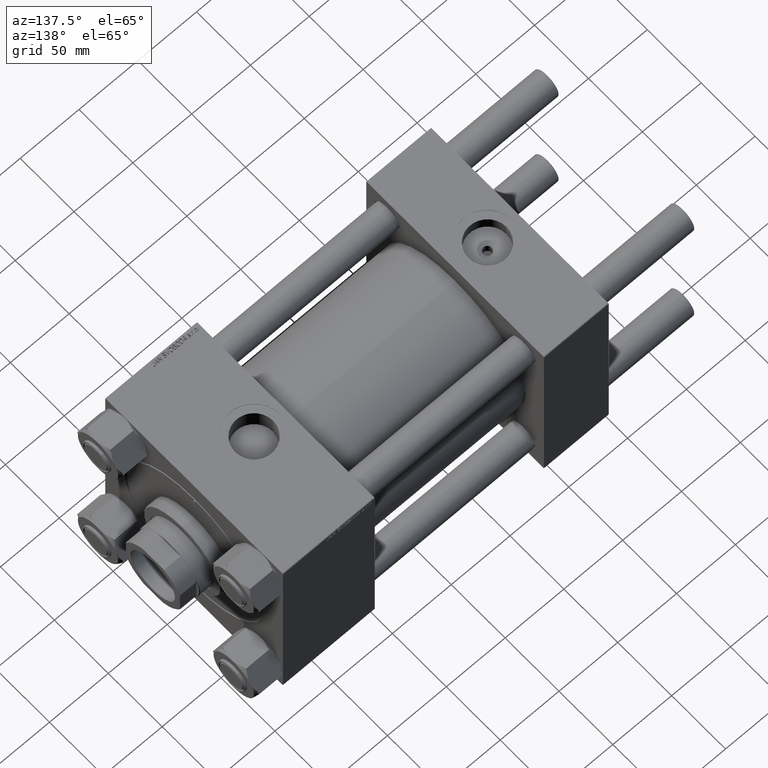
[diagram: clean part render]
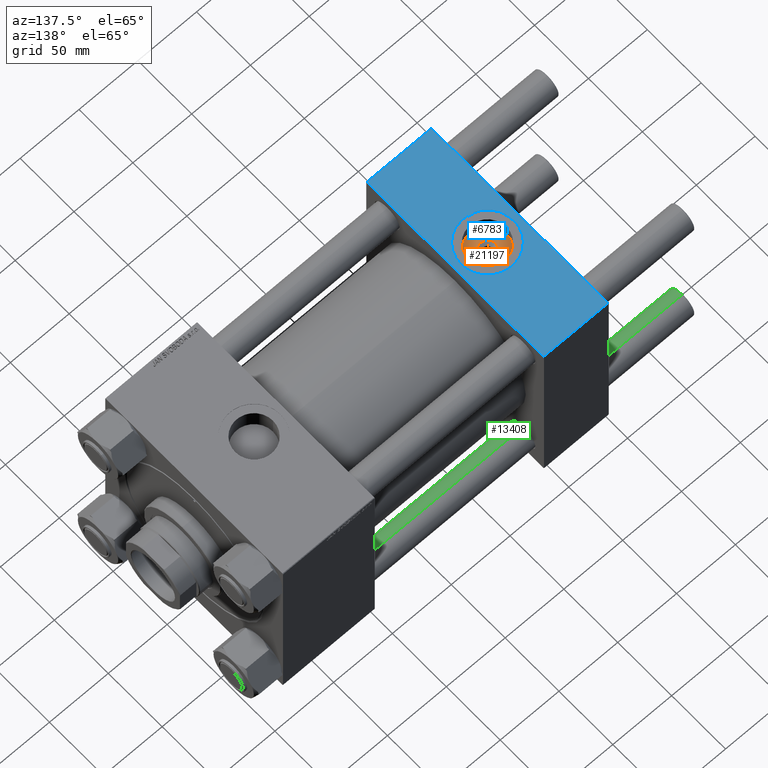
[diagram: same view with three faces highlighted in distinct colors, each labeled with its STEP entity id]
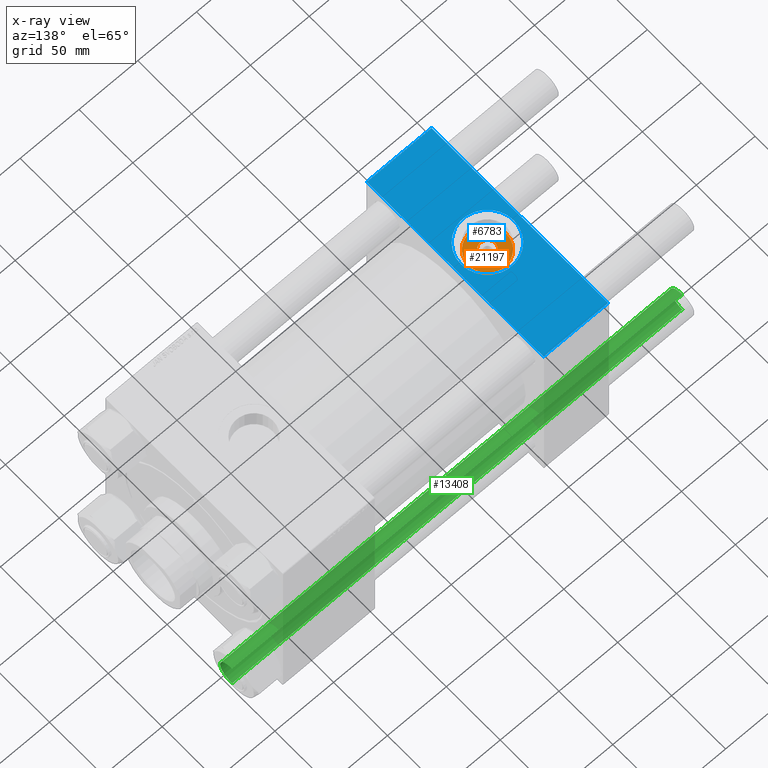
[diagram: x-ray of the same camera — body ghosted, the three highlighted faces saturated]
A machine part, auxiliary view with three faces highlighted in distinct colors.
The next image is the same camera in x-ray (body ghosted, the three faces saturated) — at least one of them is partly hidden behind the body in this view.
Their STEP definitions:

[orange] entity #21197 — the highlighted planar face has unit normal (0, 0, 1).
#1926 = EDGE_CURVE ( 'NONE', #11041, #44816, #34097, .T. ) ;
#3099 = FACE_BOUND ( 'NONE', #12371, .T. ) ;
#3137 = DIRECTION ( 'NONE',  ( 1.000000000000000000, 0.000000000000000000, 0.000000000000000000 ) ) ;
#3382 = CARTESIAN_POINT ( 'NONE',  ( 27.50000000000000000, -8.673617379884037050E-15, 71.70000000000001705 ) ) ;
#3487 = VERTEX_POINT ( 'NONE', #21592 ) ;
#3653 = CARTESIAN_POINT ( 'NONE',  ( 27.50000000000000000, -8.673617379884037050E-15, 71.70000000000001705 ) ) ;
#6451 = DIRECTION ( 'NONE',  ( 0.000000000000000000, 0.000000000000000000, 1.000000000000000000 ) ) ;
#7441 = DIRECTION ( 'NONE',  ( 1.000000000000000000, 0.000000000000000000, -0.000000000000000000 ) ) ;
#8031 = AXIS2_PLACEMENT_3D ( 'NONE', #17435, #14379, #37074 ) ;
#11041 = VERTEX_POINT ( 'NONE', #43092 ) ;
#12371 = EDGE_LOOP ( 'NONE', ( #15055, #31788 ) ) ;
#12452 = EDGE_CURVE ( 'NONE', #21450, #3487, #42854, .T. ) ;
#14379 = DIRECTION ( 'NONE',  ( 0.000000000000000000, 0.000000000000000000, 1.000000000000000000 ) ) ;
#14706 = EDGE_LOOP ( 'NONE', ( #23000, #47223 ) ) ;
#15055 = ORIENTED_EDGE ( 'NONE', *, *, #12452, .T. ) ;
#17435 = CARTESIAN_POINT ( 'NONE',  ( 27.50000000000000000, -8.673617379884037050E-15, 71.70000000000001705 ) ) ;
#17896 = AXIS2_PLACEMENT_3D ( 'NONE', #29792, #21379, #36697 ) ;
#18642 = CARTESIAN_POINT ( 'NONE',  ( 27.50000000000000000, -8.673617379884037050E-15, 71.70000000000001705 ) ) ;
#20802 = AXIS2_PLACEMENT_3D ( 'NONE', #3382, #25804, #45227 ) ;
#21197 = ADVANCED_FACE ( 'NONE', ( #3099, #31148 ), #42382, .T. ) ;
#21379 = DIRECTION ( 'NONE',  ( -0.000000000000000000, -0.000000000000000000, -1.000000000000000000 ) ) ;
#21450 = VERTEX_POINT ( 'NONE', #35155 ) ;
#21592 = CARTESIAN_POINT ( 'NONE',  ( 20.85999999999996390, -7.860451905250190996E-15, 71.70000000000001705 ) ) ;
#23000 = ORIENTED_EDGE ( 'NONE', *, *, #43395, .T. ) ;
#25804 = DIRECTION ( 'NONE',  ( -0.000000000000000000, -0.000000000000000000, -1.000000000000000000 ) ) ;
#26086 = AXIS2_PLACEMENT_3D ( 'NONE', #18642, #27303, #7441 ) ;
#26175 = CARTESIAN_POINT ( 'NONE',  ( 43.62000000000000455, -8.673617379884037050E-15, 71.70000000000001705 ) ) ;
#27303 = DIRECTION ( 'NONE',  ( 0.000000000000000000, 0.000000000000000000, 1.000000000000000000 ) ) ;
#29792 = CARTESIAN_POINT ( 'NONE',  ( 27.50000000000000000, -8.673617379884037050E-15, 71.70000000000001705 ) ) ;
#31148 = FACE_OUTER_BOUND ( 'NONE', #14706, .T. ) ;
#31788 = ORIENTED_EDGE ( 'NONE', *, *, #48134, .T. ) ;
#34097 = CIRCLE ( 'NONE', #8031, 16.12000000000000455 ) ;
#35155 = CARTESIAN_POINT ( 'NONE',  ( 34.14000000000002899, -8.673617379884037050E-15, 71.70000000000001705 ) ) ;
#36697 = DIRECTION ( 'NONE',  ( 1.000000000000000000, 0.000000000000000000, 0.000000000000000000 ) ) ;
#37074 = DIRECTION ( 'NONE',  ( 1.000000000000000000, 0.000000000000000000, 0.000000000000000000 ) ) ;
#39900 = CIRCLE ( 'NONE', #17896, 6.640000000000031655 ) ;
#42382 = PLANE ( 'NONE',  #26086 ) ;
#42854 = CIRCLE ( 'NONE', #20802, 6.640000000000031655 ) ;
#43092 = CARTESIAN_POINT ( 'NONE',  ( 11.37999999999999012, -6.699486739658503022E-15, 71.70000000000001705 ) ) ;
#43395 = EDGE_CURVE ( 'NONE', #44816, #11041, #50464, .T. ) ;
#44816 = VERTEX_POINT ( 'NONE', #26175 ) ;
#45227 = DIRECTION ( 'NONE',  ( 1.000000000000000000, 0.000000000000000000, 0.000000000000000000 ) ) ;
#47220 = AXIS2_PLACEMENT_3D ( 'NONE', #3653, #6451, #3137 ) ;
#47223 = ORIENTED_EDGE ( 'NONE', *, *, #1926, .T. ) ;
#48134 = EDGE_CURVE ( 'NONE', #3487, #21450, #39900, .T. ) ;
#50464 = CIRCLE ( 'NONE', #47220, 16.12000000000000455 ) ;

[blue] entity #6783 — the highlighted planar face has unit normal (0, 0, -1).
#144 = EDGE_CURVE ( 'NONE', #1160, #29355, #17335, .T. ) ;
#1160 = VERTEX_POINT ( 'NONE', #25810 ) ;
#1711 = EDGE_CURVE ( 'NONE', #24783, #1160, #4691, .T. ) ;
#1891 = FACE_OUTER_BOUND ( 'NONE', #25437, .T. ) ;
#2204 = EDGE_CURVE ( 'NONE', #40864, #13373, #24360, .T. ) ;
#4002 = VECTOR ( 'NONE', #33420, 1000.000000000000000 ) ;
#4581 = CARTESIAN_POINT ( 'NONE',  ( 0.000000000000000000, -81.99999999999997158, 82.50000000000001421 ) ) ;
#4691 = LINE ( 'NONE', #35563, #30856 ) ;
#6783 = ADVANCED_FACE ( 'NONE', ( #36837, #1891 ), #48326, .F. ) ;
#9028 = DIRECTION ( 'NONE',  ( -1.000000000000000000, 0.000000000000000000, 0.000000000000000000 ) ) ;
#10020 = DIRECTION ( 'NONE',  ( 0.000000000000000000, 0.000000000000000000, 1.000000000000000000 ) ) ;
#10617 = EDGE_CURVE ( 'NONE', #13373, #40864, #17310, .T. ) ;
#10934 = CARTESIAN_POINT ( 'NONE',  ( 55.00000000000000000, -81.99999999999997158, 82.50000000000001421 ) ) ;
#13373 = VERTEX_POINT ( 'NONE', #46499 ) ;
#13375 = CARTESIAN_POINT ( 'NONE',  ( 55.00000000000000000, 82.50000000000002842, 82.50000000000002842 ) ) ;
#16681 = CARTESIAN_POINT ( 'NONE',  ( 55.00000000000000000, 82.50000000000002842, 82.50000000000002842 ) ) ;
#17080 = CARTESIAN_POINT ( 'NONE',  ( 0.000000000000000000, 82.50000000000002842, 82.50000000000002842 ) ) ;
#17199 = DIRECTION ( 'NONE',  ( 0.000000000000000000, 1.000000000000000000, 8.410780489584519171E-17 ) ) ;
#17310 = CIRCLE ( 'NONE', #41752, 22.50000000000000355 ) ;
#17335 = LINE ( 'NONE', #17080, #35695 ) ;
#17427 = DIRECTION ( 'NONE',  ( 0.000000000000000000, -1.000000000000000000, -8.410780489584519171E-17 ) ) ;
#17449 = DIRECTION ( 'NONE',  ( 0.000000000000000000, 8.410780489584519171E-17, -1.000000000000000000 ) ) ;
#17865 = CARTESIAN_POINT ( 'NONE',  ( 27.50000000000000000, -8.673617379884037050E-15, 82.50000000000001421 ) ) ;
#18126 = DIRECTION ( 'NONE',  ( 1.000000000000000000, 0.000000000000000000, 0.000000000000000000 ) ) ;
#18337 = ORIENTED_EDGE ( 'NONE', *, *, #35034, .F. ) ;
#18725 = CARTESIAN_POINT ( 'NONE',  ( 55.00000000000000000, 82.00000000000005684, 82.50000000000002842 ) ) ;
#21522 = ORIENTED_EDGE ( 'NONE', *, *, #42751, .T. ) ;
#24360 = CIRCLE ( 'NONE', #49622, 22.50000000000000355 ) ;
#24783 = VERTEX_POINT ( 'NONE', #18725 ) ;
#25437 = EDGE_LOOP ( 'NONE', ( #45350, #21522, #18337, #40428 ) ) ;
#25808 = DIRECTION ( 'NONE',  ( 1.000000000000000000, 0.000000000000000000, 0.000000000000000000 ) ) ;
#25810 = CARTESIAN_POINT ( 'NONE',  ( 0.000000000000000000, 82.00000000000005684, 82.50000000000002842 ) ) ;
#28897 = LINE ( 'NONE', #16681, #45997 ) ;
#29355 = VERTEX_POINT ( 'NONE', #4581 ) ;
#30856 = VECTOR ( 'NONE', #9028, 1000.000000000000000 ) ;
#33420 = DIRECTION ( 'NONE',  ( 1.000000000000000000, 0.000000000000000000, 0.000000000000000000 ) ) ;
#34440 = LINE ( 'NONE', #45671, #4002 ) ;
#35011 = CARTESIAN_POINT ( 'NONE',  ( 50.00000000000000000, -8.673617379884037050E-15, 82.50000000000001421 ) ) ;
#35034 = EDGE_CURVE ( 'NONE', #24783, #41484, #28897, .T. ) ;
#35563 = CARTESIAN_POINT ( 'NONE',  ( 0.000000000000000000, 82.00000000000005684, 82.50000000000002842 ) ) ;
#35695 = VECTOR ( 'NONE', #40799, 1000.000000000000000 ) ;
#36837 = FACE_BOUND ( 'NONE', #46449, .T. ) ;
#40428 = ORIENTED_EDGE ( 'NONE', *, *, #1711, .T. ) ;
#40799 = DIRECTION ( 'NONE',  ( 0.000000000000000000, -1.000000000000000000, -8.410780489584519171E-17 ) ) ;
#40864 = VERTEX_POINT ( 'NONE', #35011 ) ;
#41484 = VERTEX_POINT ( 'NONE', #10934 ) ;
#41752 = AXIS2_PLACEMENT_3D ( 'NONE', #44982, #10020, #25808 ) ;
#42751 = EDGE_CURVE ( 'NONE', #29355, #41484, #34440, .T. ) ;
#43740 = ORIENTED_EDGE ( 'NONE', *, *, #10617, .F. ) ;
#44077 = AXIS2_PLACEMENT_3D ( 'NONE', #13375, #17449, #17199 ) ;
#44413 = DIRECTION ( 'NONE',  ( 0.000000000000000000, 0.000000000000000000, 1.000000000000000000 ) ) ;
#44982 = CARTESIAN_POINT ( 'NONE',  ( 27.50000000000000000, -8.673617379884037050E-15, 82.50000000000001421 ) ) ;
#45350 = ORIENTED_EDGE ( 'NONE', *, *, #144, .T. ) ;
#45671 = CARTESIAN_POINT ( 'NONE',  ( 55.00000000000000000, -81.99999999999997158, 82.50000000000001421 ) ) ;
#45997 = VECTOR ( 'NONE', #17427, 1000.000000000000000 ) ;
#46449 = EDGE_LOOP ( 'NONE', ( #50416, #43740 ) ) ;
#46499 = CARTESIAN_POINT ( 'NONE',  ( 4.999999999999993783, -5.918162081802491483E-15, 82.50000000000001421 ) ) ;
#48326 = PLANE ( 'NONE',  #44077 ) ;
#49622 = AXIS2_PLACEMENT_3D ( 'NONE', #17865, #44413, #18126 ) ;
#50416 = ORIENTED_EDGE ( 'NONE', *, *, #2204, .F. ) ;

[green] entity #13408 — the highlighted cylindrical surface (edge-blend (fillet) strip) has radius 11 mm, axis along (1, 0, -0).
#1044 = DIRECTION ( 'NONE',  ( -0.000000000000000000, -0.000000000000000000, -1.000000000000000000 ) ) ;
#1135 = CARTESIAN_POINT ( 'NONE',  ( 0.000000000000000000, 0.000000000000000000, 383.5000000000000568 ) ) ;
#2799 = EDGE_CURVE ( 'NONE', #48516, #18837, #21067, .T. ) ;
#5152 = EDGE_CURVE ( 'NONE', #18837, #7452, #16349, .T. ) ;
#5451 = DIRECTION ( 'NONE',  ( 1.000000000000000000, 0.000000000000000000, 0.000000000000000000 ) ) ;
#5860 = ORIENTED_EDGE ( 'NONE', *, *, #31666, .T. ) ;
#6027 = CARTESIAN_POINT ( 'NONE',  ( -11.00000000000000000, 0.000000000000000000, 0.4999999999999449329 ) ) ;
#6068 = CIRCLE ( 'NONE', #34600, 11.00000000000000000 ) ;
#7301 = CARTESIAN_POINT ( 'NONE',  ( -11.00000000000000000, 0.000000000000000000, 383.5000000000000568 ) ) ;
#7452 = VERTEX_POINT ( 'NONE', #6027 ) ;
#12536 = CYLINDRICAL_SURFACE ( 'NONE', #46332, 11.00000000000000000 ) ;
#13408 = ADVANCED_FACE ( 'NONE', ( #39580 ), #12536, .T. ) ;
#16349 = LINE ( 'NONE', #28064, #41563 ) ;
#18837 = VERTEX_POINT ( 'NONE', #7301 ) ;
#21067 = CIRCLE ( 'NONE', #34131, 11.00000000000000000 ) ;
#25389 = CARTESIAN_POINT ( 'NONE',  ( 11.00000000000000000, 1.347111479062088405E-15, 383.5000000000000568 ) ) ;
#27335 = DIRECTION ( 'NONE',  ( -1.000000000000000000, 0.000000000000000000, 0.000000000000000000 ) ) ;
#28064 = CARTESIAN_POINT ( 'NONE',  ( -11.00000000000000000, 0.000000000000000000, 384.0000000000000000 ) ) ;
#28397 = DIRECTION ( 'NONE',  ( 0.000000000000000000, 0.000000000000000000, -1.000000000000000000 ) ) ;
#28610 = DIRECTION ( 'NONE',  ( 1.000000000000000000, 0.000000000000000000, 0.000000000000000000 ) ) ;
#29799 = VECTOR ( 'NONE', #44451, 1000.000000000000000 ) ;
#31419 = CARTESIAN_POINT ( 'NONE',  ( 0.000000000000000000, 0.000000000000000000, 384.0000000000000000 ) ) ;
#31666 = EDGE_CURVE ( 'NONE', #7452, #44017, #6068, .T. ) ;
#31913 = DIRECTION ( 'NONE',  ( -0.000000000000000000, -0.000000000000000000, -1.000000000000000000 ) ) ;
#34131 = AXIS2_PLACEMENT_3D ( 'NONE', #1135, #28397, #5451 ) ;
#34295 = ORIENTED_EDGE ( 'NONE', *, *, #5152, .T. ) ;
#34600 = AXIS2_PLACEMENT_3D ( 'NONE', #44192, #47771, #28610 ) ;
#35289 = LINE ( 'NONE', #37044, #29799 ) ;
#36885 = CARTESIAN_POINT ( 'NONE',  ( 11.00000000000000000, 1.347111479062088405E-15, 0.4999999999999449329 ) ) ;
#37044 = CARTESIAN_POINT ( 'NONE',  ( 11.00000000000000000, 1.347111479062088405E-15, 384.0000000000000000 ) ) ;
#38516 = EDGE_CURVE ( 'NONE', #48516, #44017, #35289, .T. ) ;
#38800 = EDGE_LOOP ( 'NONE', ( #46808, #42879, #34295, #5860 ) ) ;
#39580 = FACE_OUTER_BOUND ( 'NONE', #38800, .T. ) ;
#41563 = VECTOR ( 'NONE', #1044, 1000.000000000000000 ) ;
#42879 = ORIENTED_EDGE ( 'NONE', *, *, #2799, .T. ) ;
#44017 = VERTEX_POINT ( 'NONE', #36885 ) ;
#44192 = CARTESIAN_POINT ( 'NONE',  ( 0.000000000000000000, 0.000000000000000000, 0.4999999999999449329 ) ) ;
#44451 = DIRECTION ( 'NONE',  ( -0.000000000000000000, -0.000000000000000000, -1.000000000000000000 ) ) ;
#46332 = AXIS2_PLACEMENT_3D ( 'NONE', #31419, #31913, #27335 ) ;
#46808 = ORIENTED_EDGE ( 'NONE', *, *, #38516, .F. ) ;
#47771 = DIRECTION ( 'NONE',  ( -0.000000000000000000, -0.000000000000000000, 1.000000000000000000 ) ) ;
#48516 = VERTEX_POINT ( 'NONE', #25389 ) ;